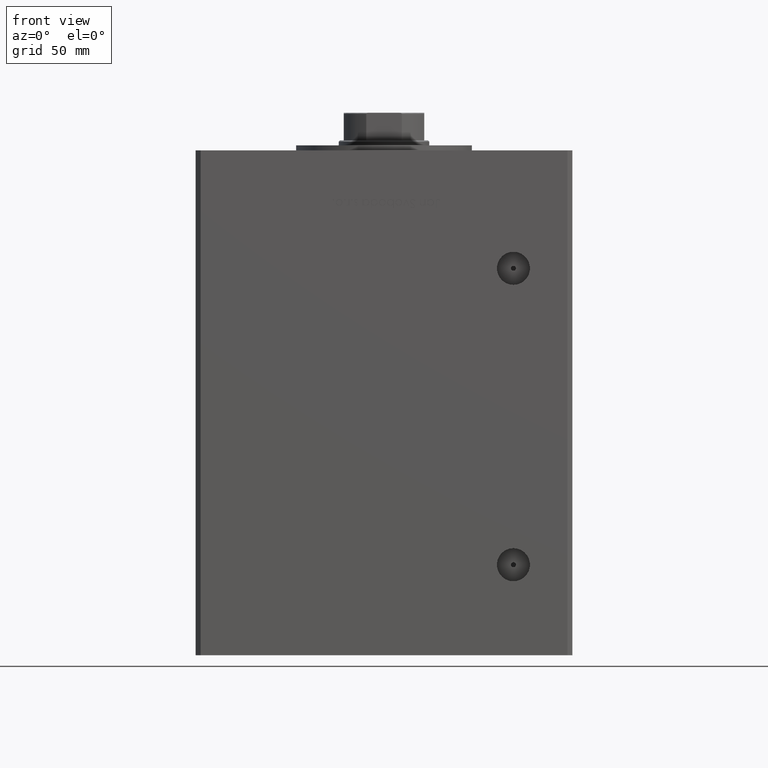
[diagram: clean part render]
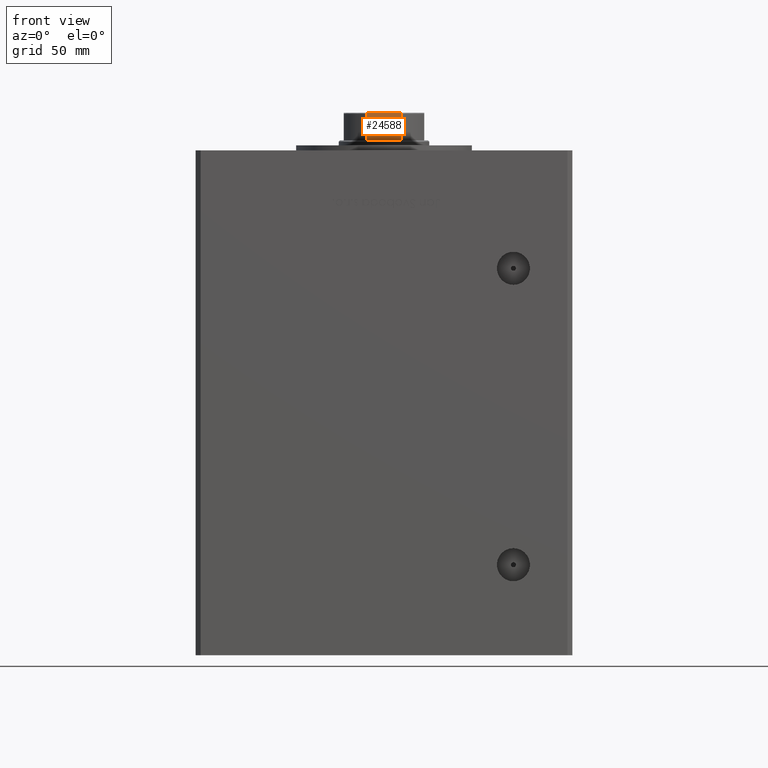
[diagram: same view with one face highlighted and labeled with its STEP entity id]
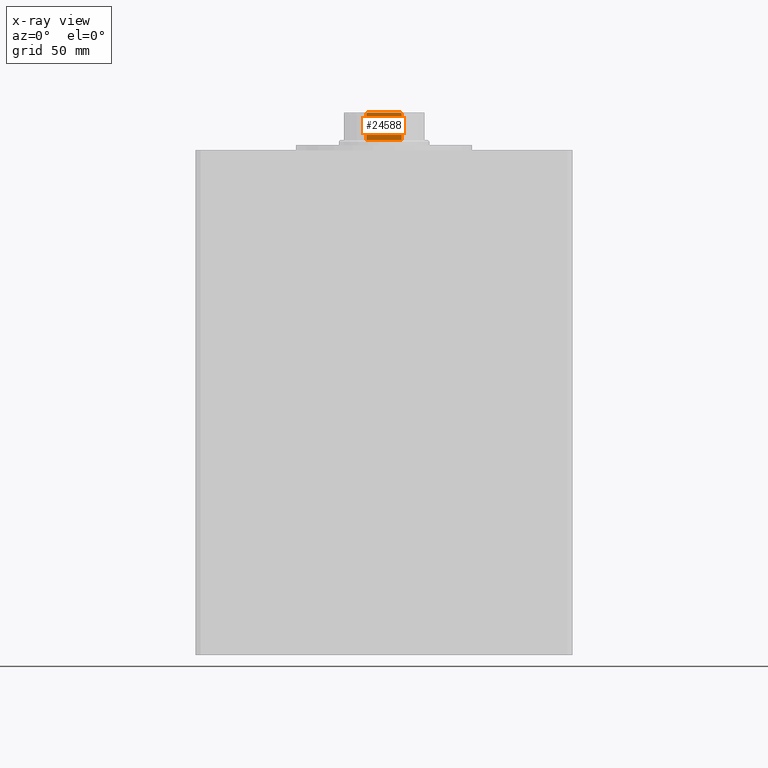
[diagram: x-ray of the same camera — body ghosted, the highlighted face saturated]
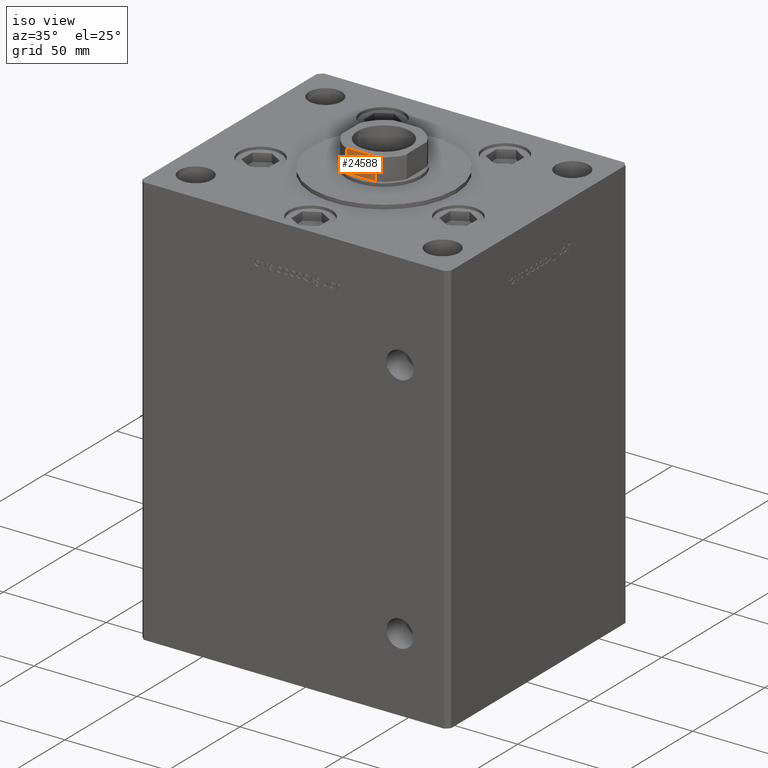
[diagram: same view with one face highlighted and labeled with its STEP entity id]
A machine part, front view. The second image highlights one B-rep face of the part: STEP entity #24588.
The next image is the same camera in x-ray: the body ghosted, the highlighted face saturated — about 0% of this face is hidden behind the body in this view.
A second angle (iso view) of the same face is appended — the face is thin or edge-on in the first view.
In plain terms, the highlighted planar face has unit normal (-0, 1, 0).
Its self-contained STEP definition (entity closure, byte-faithful):
#594 = CARTESIAN_POINT ( 'NONE',  ( 7.055665994487712034, -16.00000000000000000, 182.1256422470903829 ) ) ;
#1416 = CARTESIAN_POINT ( 'NONE',  ( -7.088723439378916247, -16.00000000000000000, 171.5000000000000000 ) ) ;
#1699 = VERTEX_POINT ( 'NONE', #13362 ) ;
#2057 = CARTESIAN_POINT ( 'NONE',  ( -6.620608993398001019, -16.00000000000000355, 182.3919184437073397 ) ) ;
#2192 = ORIENTED_EDGE ( 'NONE', *, *, #12765, .T. ) ;
#4118 = CARTESIAN_POINT ( 'NONE',  ( 5.744562646538024175, -16.00000000000000355, 182.5000000000000284 ) ) ;
#4702 = CARTESIAN_POINT ( 'NONE',  ( 7.088723439378916247, -16.00000000000000000, 182.0000000000000284 ) ) ;
#5873 = CARTESIAN_POINT ( 'NONE',  ( -7.088723439378916247, -16.00000000000000000, -0.001000000000001000089 ) ) ;
#6205 = LINE ( 'NONE', #45763, #37906 ) ;
#6416 = CARTESIAN_POINT ( 'NONE',  ( -15.99999999999999645, -16.00000000000000355, 182.5000000000000284 ) ) ;
#6975 = AXIS2_PLACEMENT_3D ( 'NONE', #6416, #30904, #30377 ) ;
#7105 = VERTEX_POINT ( 'NONE', #4702 ) ;
#7264 = CARTESIAN_POINT ( 'NONE',  ( 7.088723439378916247, -16.00000000000000000, -0.001000000000001000089 ) ) ;
#9000 = CARTESIAN_POINT ( 'NONE',  ( 5.744562646538024175, -16.00000000000000355, 182.5000000000000284 ) ) ;
#9119 = ORIENTED_EDGE ( 'NONE', *, *, #26604, .T. ) ;
#9437 = CARTESIAN_POINT ( 'NONE',  ( -5.744562646538029504, -16.00000000000000355, 182.5000000000000284 ) ) ;
#10365 = FACE_OUTER_BOUND ( 'NONE', #10796, .T. ) ;
#10796 = EDGE_LOOP ( 'NONE', ( #30243, #2192, #38115, #42720, #9119, #39766 ) ) ;
#12452 = CARTESIAN_POINT ( 'NONE',  ( 6.914772706552263060, -16.00000000000000000, 182.2576711345670901 ) ) ;
#12709 = CARTESIAN_POINT ( 'NONE',  ( 6.623467753754347598, -16.00000000000000000, 182.3910978819202171 ) ) ;
#12765 = EDGE_CURVE ( 'NONE', #1699, #24003, #25348, .T. ) ;
#12976 = EDGE_CURVE ( 'NONE', #1699, #38874, #6205, .T. ) ;
#13362 = CARTESIAN_POINT ( 'NONE',  ( -5.744562646538029504, -16.00000000000000355, 182.5000000000000284 ) ) ;
#14255 = VERTEX_POINT ( 'NONE', #27446 ) ;
#16137 = CARTESIAN_POINT ( 'NONE',  ( 6.252433022027807930, -16.00000000000000000, 182.4806157152108881 ) ) ;
#16654 = CARTESIAN_POINT ( 'NONE',  ( 6.746962372739932157, -16.00000000000000000, 182.3511068297690372 ) ) ;
#17334 = CARTESIAN_POINT ( 'NONE',  ( -6.744478600285194858, -16.00000000000000355, 182.3522542963852970 ) ) ;
#17729 = VECTOR ( 'NONE', #34056, 1000.000000000000000 ) ;
#18117 = CARTESIAN_POINT ( 'NONE',  ( -7.055793701721071898, -15.99999999999999645, 182.1256279161198108 ) ) ;
#19156 = LINE ( 'NONE', #23622, #32247 ) ;
#19996 = EDGE_CURVE ( 'NONE', #7105, #38874, #42119, .T. ) ;
#20062 = CARTESIAN_POINT ( 'NONE',  ( 7.088723439378915359, -15.99999999999999645, 182.0653596029795551 ) ) ;
#21534 = CARTESIAN_POINT ( 'NONE',  ( -6.967626683430006018, -16.00000000000000000, 182.2212986014228875 ) ) ;
#23074 = LINE ( 'NONE', #7264, #47964 ) ;
#23622 = CARTESIAN_POINT ( 'NONE',  ( -15.99999999999999645, -16.00000000000000355, 171.5000000000000000 ) ) ;
#24003 = VERTEX_POINT ( 'NONE', #46414 ) ;
#24275 = CARTESIAN_POINT ( 'NONE',  ( 5.999773414835122942, -16.00000000000000355, 182.5000000000000853 ) ) ;
#24588 = ADVANCED_FACE ( 'NONE', ( #10365 ), #34865, .F. ) ;
#25348 = B_SPLINE_CURVE_WITH_KNOTS ( 'NONE', 3,
 ( #9437, #42382, #42120, #2057, #17334, #33927, #21534, #18117, #26520, #29438 ),
 .UNSPECIFIED., .F., .F.,
 ( 4, 2, 2, 2, 4 ),
 ( 0.000000000000000000, 0.0007561879621635630858, 0.001134281943245333841, 0.001323328933786239656, 0.001512375924327145904 ),
 .UNSPECIFIED. ) ;
#26520 = CARTESIAN_POINT ( 'NONE',  ( -7.088723439378916247, -16.00000000000000711, 182.0655697653147342 ) ) ;
#26604 = EDGE_CURVE ( 'NONE', #14255, #7105, #23074, .T. ) ;
#27446 = CARTESIAN_POINT ( 'NONE',  ( 7.088723439378916247, -16.00000000000000000, 171.5000000000000000 ) ) ;
#29438 = CARTESIAN_POINT ( 'NONE',  ( -7.088723439378916247, -16.00000000000000000, 182.0000000000000284 ) ) ;
#30243 = ORIENTED_EDGE ( 'NONE', *, *, #12976, .F. ) ;
#30377 = DIRECTION ( 'NONE',  ( -1.000000000000000000, -1.084202172485504557E-16, 0.000000000000000000 ) ) ;
#30904 = DIRECTION ( 'NONE',  ( -1.084202172485504557E-16, 1.000000000000000000, 0.000000000000000000 ) ) ;
#32247 = VECTOR ( 'NONE', #47392, 1000.000000000000000 ) ;
#32923 = EDGE_CURVE ( 'NONE', #39220, #24003, #40959, .T. ) ;
#33927 = CARTESIAN_POINT ( 'NONE',  ( -6.914158745692617458, -16.00000000000000355, 182.2581288012990512 ) ) ;
#34056 = DIRECTION ( 'NONE',  ( -0.000000000000000000, -0.000000000000000000, 1.000000000000000000 ) ) ;
#34865 = PLANE ( 'NONE',  #6975 ) ;
#36161 = CARTESIAN_POINT ( 'NONE',  ( 7.088723439378916247, -16.00000000000000000, 182.0000000000000284 ) ) ;
#36782 = DIRECTION ( 'NONE',  ( -0.000000000000000000, -0.000000000000000000, 1.000000000000000000 ) ) ;
#37906 = VECTOR ( 'NONE', #49969, 1000.000000000000000 ) ;
#38115 = ORIENTED_EDGE ( 'NONE', *, *, #32923, .F. ) ;
#38874 = VERTEX_POINT ( 'NONE', #4118 ) ;
#39220 = VERTEX_POINT ( 'NONE', #1416 ) ;
#39766 = ORIENTED_EDGE ( 'NONE', *, *, #19996, .T. ) ;
#40859 = EDGE_CURVE ( 'NONE', #39220, #14255, #19156, .T. ) ;
#40914 = CARTESIAN_POINT ( 'NONE',  ( 6.968475375953127049, -15.99999999999999645, 182.2205009019615147 ) ) ;
#40959 = LINE ( 'NONE', #5873, #17729 ) ;
#42119 = B_SPLINE_CURVE_WITH_KNOTS ( 'NONE', 3,
 ( #36161, #20062, #594, #40914, #12452, #16654, #12709, #16137, #24275, #9000 ),
 .UNSPECIFIED., .F., .F.,
 ( 4, 2, 2, 2, 4 ),
 ( 0.000000000000000000, 0.0001928955851489301532, 0.0003857911702978603064, 0.0007715823405957613788, 0.001543164681191583039 ),
 .UNSPECIFIED. ) ;
#42120 = CARTESIAN_POINT ( 'NONE',  ( -6.251780714621276047, -16.00000000000000355, 182.4805079891187347 ) ) ;
#42382 = CARTESIAN_POINT ( 'NONE',  ( -5.999698100839998993, -16.00000000000000355, 182.5000000000000284 ) ) ;
#42720 = ORIENTED_EDGE ( 'NONE', *, *, #40859, .T. ) ;
#45763 = CARTESIAN_POINT ( 'NONE',  ( -15.99999999999999645, -16.00000000000000355, 182.5000000000000284 ) ) ;
#46414 = CARTESIAN_POINT ( 'NONE',  ( -7.088723439378916247, -16.00000000000000000, 182.0000000000000284 ) ) ;
#47392 = DIRECTION ( 'NONE',  ( 1.000000000000000000, 1.084202172485504434E-16, 0.000000000000000000 ) ) ;
#47964 = VECTOR ( 'NONE', #36782, 1000.000000000000000 ) ;
#49969 = DIRECTION ( 'NONE',  ( 1.000000000000000000, 1.084202172485504434E-16, 0.000000000000000000 ) ) ;